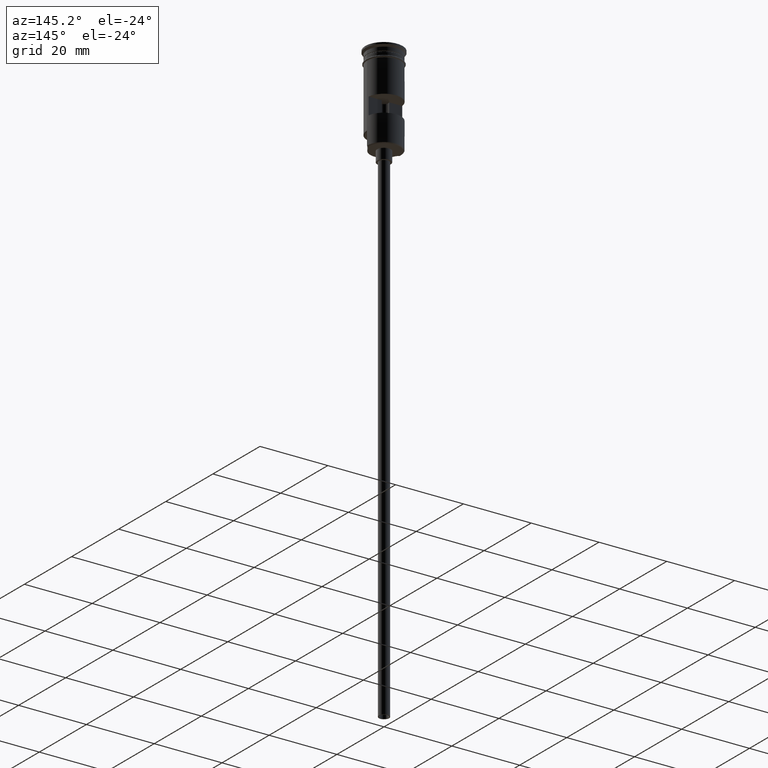
[diagram: clean part render]
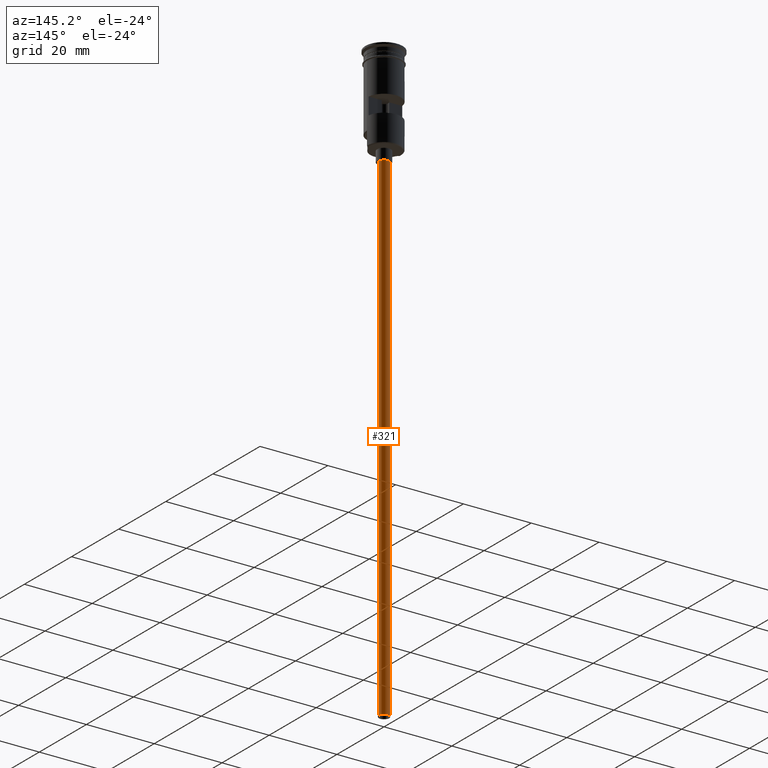
[diagram: same view with one face highlighted and labeled with its STEP entity id]
A machine part, auxiliary view. The second image highlights one B-rep face of the part: STEP entity #321.
In plain terms, the highlighted cylindrical surface (edge-blend (fillet) strip) has radius 1.5 mm, axis along (-0, -0, 1).
Its self-contained STEP definition (entity closure, byte-faithful):
#56 = AXIS2_PLACEMENT_3D ( 'NONE', #281, #288, #1484 ) ;
#157 = DIRECTION ( 'NONE',  ( -0.000000000000000000, -0.000000000000000000, 1.000000000000000000 ) ) ;
#197 = AXIS2_PLACEMENT_3D ( 'NONE', #608, #1339, #1585 ) ;
#271 = CARTESIAN_POINT ( 'NONE',  ( 1.500000000000000222, 0.000000000000000000, -176.5000000000000000 ) ) ;
#281 = CARTESIAN_POINT ( 'NONE',  ( 0.000000000000000000, 0.000000000000000000, -176.5000000000000000 ) ) ;
#287 = CARTESIAN_POINT ( 'NONE',  ( 0.000000000000000000, 0.000000000000000000, -176.5000000000000000 ) ) ;
#288 = DIRECTION ( 'NONE',  ( -0.000000000000000000, -0.000000000000000000, 1.000000000000000000 ) ) ;
#321 = ADVANCED_FACE ( 'NONE', ( #1436 ), #1385, .T. ) ;
#353 = VECTOR ( 'NONE', #157, 1000.000000000000000 ) ;
#364 = CIRCLE ( 'NONE', #197, 1.500000000000000222 ) ;
#413 = CIRCLE ( 'NONE', #1537, 1.500000000000000222 ) ;
#417 = DIRECTION ( 'NONE',  ( 0.000000000000000000, 0.000000000000000000, -1.000000000000000000 ) ) ;
#420 = EDGE_CURVE ( 'NONE', #1022, #1121, #1280, .T. ) ;
#503 = CARTESIAN_POINT ( 'NONE',  ( 1.500000000000000222, 0.000000000000000000, -176.5000000000000000 ) ) ;
#525 = ORIENTED_EDGE ( 'NONE', *, *, #420, .T. ) ;
#530 = DIRECTION ( 'NONE',  ( -0.000000000000000000, -0.000000000000000000, 1.000000000000000000 ) ) ;
#559 = CARTESIAN_POINT ( 'NONE',  ( 1.500000000000000222, 0.000000000000000000, -29.50000000000000000 ) ) ;
#608 = CARTESIAN_POINT ( 'NONE',  ( 0.000000000000000000, 0.000000000000000000, -29.50000000000000000 ) ) ;
#775 = DIRECTION ( 'NONE',  ( -1.000000000000000000, 0.000000000000000000, 0.000000000000000000 ) ) ;
#859 = EDGE_CURVE ( 'NONE', #1443, #1012, #1522, .T. ) ;
#881 = ORIENTED_EDGE ( 'NONE', *, *, #859, .F. ) ;
#949 = VECTOR ( 'NONE', #530, 1000.000000000000000 ) ;
#1012 = VERTEX_POINT ( 'NONE', #559 ) ;
#1022 = VERTEX_POINT ( 'NONE', #1530 ) ;
#1034 = ORIENTED_EDGE ( 'NONE', *, *, #1454, .F. ) ;
#1121 = VERTEX_POINT ( 'NONE', #1475 ) ;
#1201 = EDGE_LOOP ( 'NONE', ( #1034, #525, #1525, #881 ) ) ;
#1280 = LINE ( 'NONE', #1527, #353 ) ;
#1339 = DIRECTION ( 'NONE',  ( 0.000000000000000000, 0.000000000000000000, -1.000000000000000000 ) ) ;
#1385 = CYLINDRICAL_SURFACE ( 'NONE', #56, 1.500000000000000222 ) ;
#1436 = FACE_OUTER_BOUND ( 'NONE', #1201, .T. ) ;
#1443 = VERTEX_POINT ( 'NONE', #503 ) ;
#1454 = EDGE_CURVE ( 'NONE', #1022, #1443, #413, .T. ) ;
#1475 = CARTESIAN_POINT ( 'NONE',  ( -1.500000000000000222, 1.836970198721030181E-16, -29.50000000000000000 ) ) ;
#1484 = DIRECTION ( 'NONE',  ( 1.000000000000000000, 0.000000000000000000, 0.000000000000000000 ) ) ;
#1522 = LINE ( 'NONE', #271, #949 ) ;
#1525 = ORIENTED_EDGE ( 'NONE', *, *, #1540, .T. ) ;
#1527 = CARTESIAN_POINT ( 'NONE',  ( -1.500000000000000222, 1.836970198721030181E-16, -176.5000000000000000 ) ) ;
#1530 = CARTESIAN_POINT ( 'NONE',  ( -1.500000000000000222, 1.836970198721030181E-16, -176.5000000000000000 ) ) ;
#1537 = AXIS2_PLACEMENT_3D ( 'NONE', #287, #417, #775 ) ;
#1540 = EDGE_CURVE ( 'NONE', #1121, #1012, #364, .T. ) ;
#1585 = DIRECTION ( 'NONE',  ( -1.000000000000000000, 0.000000000000000000, 0.000000000000000000 ) ) ;